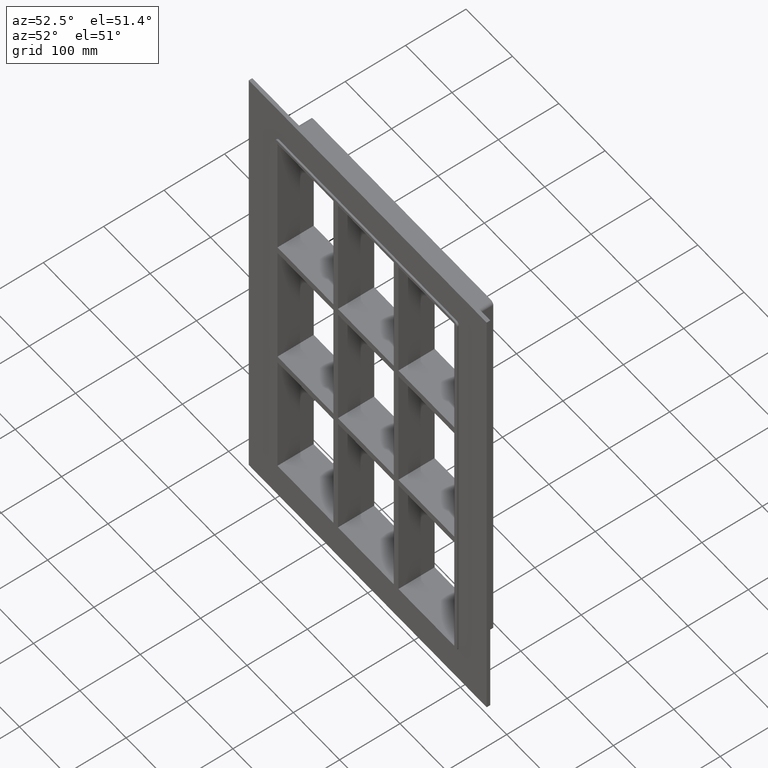
[diagram: clean part render]
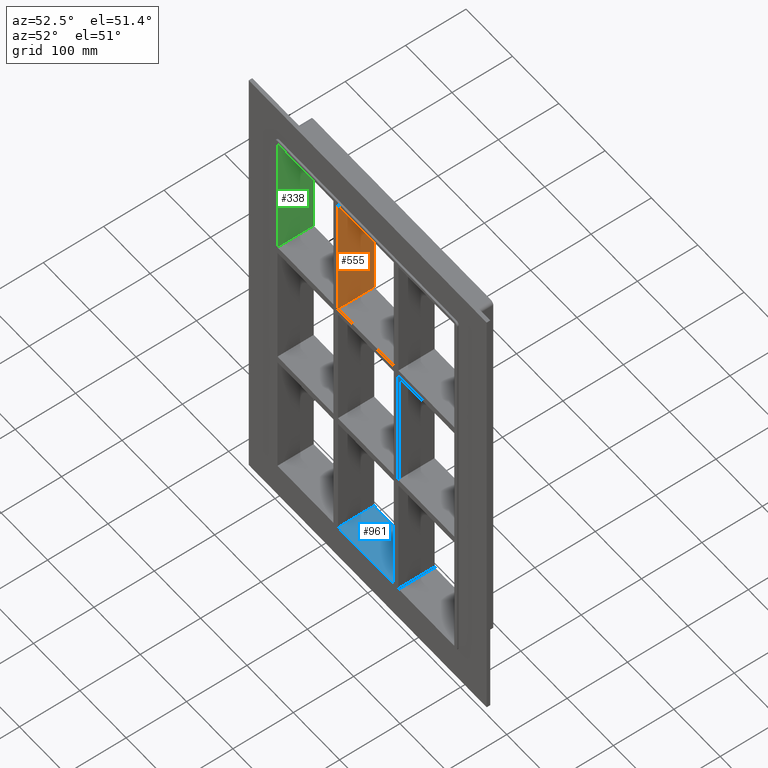
[diagram: same view with three faces highlighted in distinct colors, each labeled with its STEP entity id]
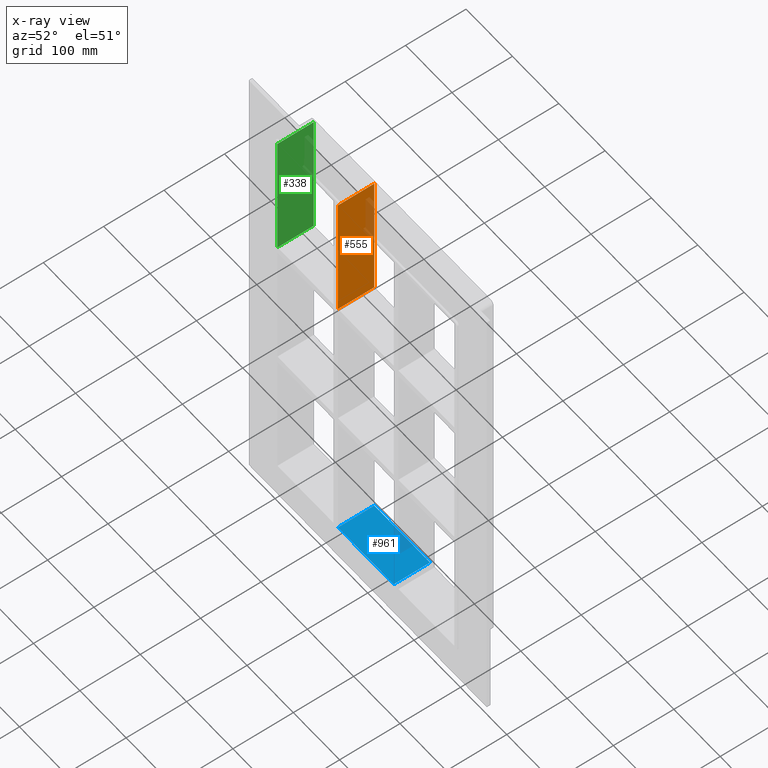
[diagram: x-ray of the same camera — body ghosted, the three highlighted faces saturated]
A machine part, auxiliary view with three faces highlighted in distinct colors.
The next image is the same camera in x-ray (body ghosted, the three faces saturated) — at least one of them is partly hidden behind the body in this view.
Their STEP definitions:

[orange] entity #555 — the highlighted planar face has unit normal (1, 0, 0).
#283=CARTESIAN_POINT('',(-60.249999999996362,57.0,120.99999999999994));
#284=VERTEX_POINT('',#283);
#291=CARTESIAN_POINT('',(-60.249999999996362,-3.0,120.99999999999994));
#292=VERTEX_POINT('',#291);
#293=CARTESIAN_POINT('',(-60.249999999996362,-3.0,120.99999999999994));
#294=DIRECTION('',(0.0,1.0,0.0));
#295=VECTOR('',#294,60.0);
#296=LINE('',#293,#295);
#297=EDGE_CURVE('',#292,#284,#296,.T.);
#525=CARTESIAN_POINT('',(-60.249999999996362,-3.0,339.00000000000011));
#526=DIRECTION('',(1.0,0.0,0.0));
#527=DIRECTION('',(0.0,0.0,-1.0));
#528=AXIS2_PLACEMENT_3D('',#525,#526,#527);
#529=PLANE('',#528);
#530=ORIENTED_EDGE('',*,*,#297,.T.);
#531=CARTESIAN_POINT('',(-60.249999999996362,57.0,339.00000000000011));
#532=VERTEX_POINT('',#531);
#533=CARTESIAN_POINT('',(-60.249999999996362,57.0,339.00000000000011));
#534=DIRECTION('',(0.0,0.0,-1.0));
#535=VECTOR('',#534,218.00000000000017);
#536=LINE('',#533,#535);
#537=EDGE_CURVE('',#532,#284,#536,.T.);
#538=ORIENTED_EDGE('',*,*,#537,.F.);
#539=CARTESIAN_POINT('',(-60.249999999996362,-3.0,339.00000000000011));
#540=VERTEX_POINT('',#539);
#541=CARTESIAN_POINT('',(-60.249999999996362,-3.0,339.00000000000011));
#542=DIRECTION('',(0.0,1.0,0.0));
#543=VECTOR('',#542,60.000000000000007);
#544=LINE('',#541,#543);
#545=EDGE_CURVE('',#540,#532,#544,.T.);
#546=ORIENTED_EDGE('',*,*,#545,.F.);
#547=CARTESIAN_POINT('',(-60.249999999996362,-3.0,339.00000000000011));
#548=DIRECTION('',(0.0,0.0,-1.0));
#549=VECTOR('',#548,218.00000000000017);
#550=LINE('',#547,#549);
#551=EDGE_CURVE('',#540,#292,#550,.T.);
#552=ORIENTED_EDGE('',*,*,#551,.T.);
#553=EDGE_LOOP('',(#530,#538,#546,#552));
#554=FACE_OUTER_BOUND('',#553,.T.);
#555=ADVANCED_FACE('',(#554),#529,.T.);

[blue] entity #961 — the highlighted planar face has unit normal (0, 0, -1).
#748=CARTESIAN_POINT('',(60.249999999998707,57.0,-339.00000000000011));
#749=VERTEX_POINT('',#748);
#766=CARTESIAN_POINT('',(-60.249999999996362,57.0,-338.99999999998437));
#767=VERTEX_POINT('',#766);
#774=CARTESIAN_POINT('',(-60.249999999996348,57.0,-339.00000000000011));
#775=DIRECTION('',(1.0,0.0,0.0));
#776=VECTOR('',#775,120.49999999999505);
#777=LINE('',#774,#776);
#778=EDGE_CURVE('',#767,#749,#777,.T.);
#866=CARTESIAN_POINT('',(60.249999999998707,-3.0,-339.00000000000011));
#867=VERTEX_POINT('',#866);
#868=CARTESIAN_POINT('',(60.249999999998707,-3.0,-339.00000000000011));
#869=DIRECTION('',(0.0,1.0,0.0));
#870=VECTOR('',#869,60.000000000000007);
#871=LINE('',#868,#870);
#872=EDGE_CURVE('',#867,#749,#871,.T.);
#938=CARTESIAN_POINT('',(190.75000000000003,0.0,-339.00000000000011));
#939=DIRECTION('',(0.0,0.0,-1.0));
#940=DIRECTION('',(-1.0,0.0,0.0));
#941=AXIS2_PLACEMENT_3D('',#938,#939,#940);
#942=PLANE('',#941);
#943=ORIENTED_EDGE('',*,*,#872,.T.);
#944=ORIENTED_EDGE('',*,*,#778,.F.);
#945=CARTESIAN_POINT('',(-60.249999999996362,-3.0,-338.99999999998437));
#946=VERTEX_POINT('',#945);
#947=CARTESIAN_POINT('',(-60.249999999996362,57.000000000000007,-339.00000000000011));
#948=DIRECTION('',(0.0,-1.0,0.0));
#949=VECTOR('',#948,60.000000000000007);
#950=LINE('',#947,#949);
#951=EDGE_CURVE('',#767,#946,#950,.T.);
#952=ORIENTED_EDGE('',*,*,#951,.T.);
#953=CARTESIAN_POINT('',(60.249999999998707,-3.0,-339.00000000000011));
#954=DIRECTION('',(-1.0,0.0,0.0));
#955=VECTOR('',#954,120.49999999999505);
#956=LINE('',#953,#955);
#957=EDGE_CURVE('',#867,#946,#956,.T.);
#958=ORIENTED_EDGE('',*,*,#957,.F.);
#959=EDGE_LOOP('',(#943,#944,#952,#958));
#960=FACE_OUTER_BOUND('',#959,.T.);
#961=ADVANCED_FACE('',(#960),#942,.F.);

[green] entity #338 — the highlighted planar face has unit normal (-1, 0, 0).
#203=CARTESIAN_POINT('',(-190.74999999999972,57.0,120.99999999999994));
#204=VERTEX_POINT('',#203);
#211=CARTESIAN_POINT('',(-190.74999999999972,-3.0,120.99999999999994));
#212=VERTEX_POINT('',#211);
#213=CARTESIAN_POINT('',(-190.75000000000003,-3.0,120.99999999999994));
#214=DIRECTION('',(0.0,1.0,0.0));
#215=VECTOR('',#214,60.000000000000007);
#216=LINE('',#213,#215);
#217=EDGE_CURVE('',#212,#204,#216,.T.);
#308=CARTESIAN_POINT('',(-190.75000000000003,0.0,-339.00000000000011));
#309=DIRECTION('',(-1.0,0.0,0.0));
#310=DIRECTION('',(0.0,0.0,1.0));
#311=AXIS2_PLACEMENT_3D('',#308,#309,#310);
#312=PLANE('',#311);
#313=ORIENTED_EDGE('',*,*,#217,.T.);
#314=CARTESIAN_POINT('',(-190.75000000000003,57.0,339.00000000000011));
#315=VERTEX_POINT('',#314);
#316=CARTESIAN_POINT('',(-190.75000000000003,57.0,339.00000000000011));
#317=DIRECTION('',(0.0,0.0,-1.0));
#318=VECTOR('',#317,218.00000000000014);
#319=LINE('',#316,#318);
#320=EDGE_CURVE('',#315,#204,#319,.T.);
#321=ORIENTED_EDGE('',*,*,#320,.F.);
#322=CARTESIAN_POINT('',(-190.75000000000003,-3.0,339.00000000000011));
#323=VERTEX_POINT('',#322);
#324=CARTESIAN_POINT('',(-190.75000000000003,-3.0,339.00000000000011));
#325=DIRECTION('',(0.0,1.0,0.0));
#326=VECTOR('',#325,60.0);
#327=LINE('',#324,#326);
#328=EDGE_CURVE('',#323,#315,#327,.T.);
#329=ORIENTED_EDGE('',*,*,#328,.F.);
#330=CARTESIAN_POINT('',(-190.75000000000003,-3.0,120.99999999999997));
#331=DIRECTION('',(0.0,0.0,1.0));
#332=VECTOR('',#331,218.00000000000014);
#333=LINE('',#330,#332);
#334=EDGE_CURVE('',#212,#323,#333,.T.);
#335=ORIENTED_EDGE('',*,*,#334,.F.);
#336=EDGE_LOOP('',(#313,#321,#329,#335));
#337=FACE_OUTER_BOUND('',#336,.T.);
#338=ADVANCED_FACE('',(#337),#312,.F.);